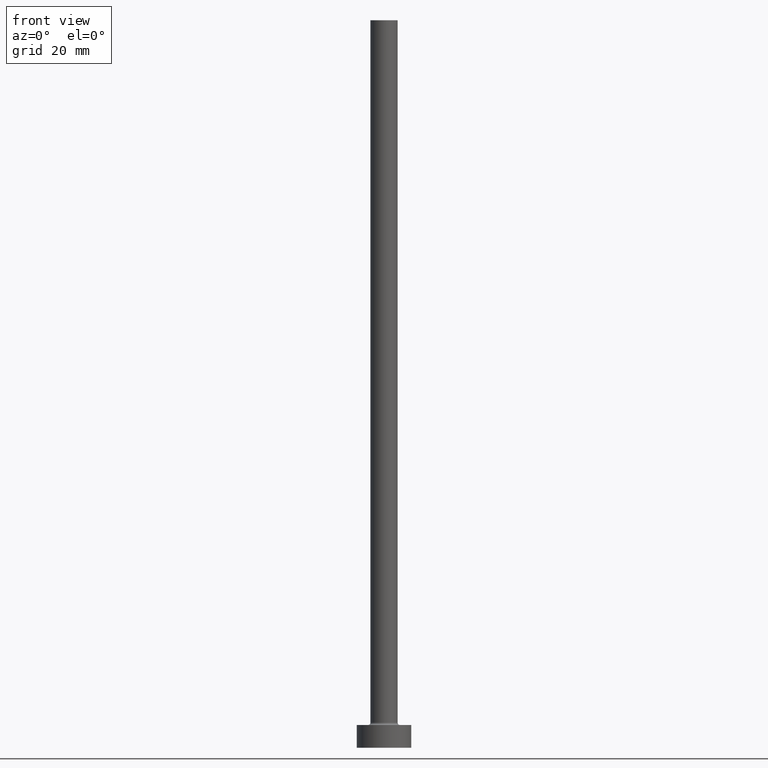
[diagram: clean part render]
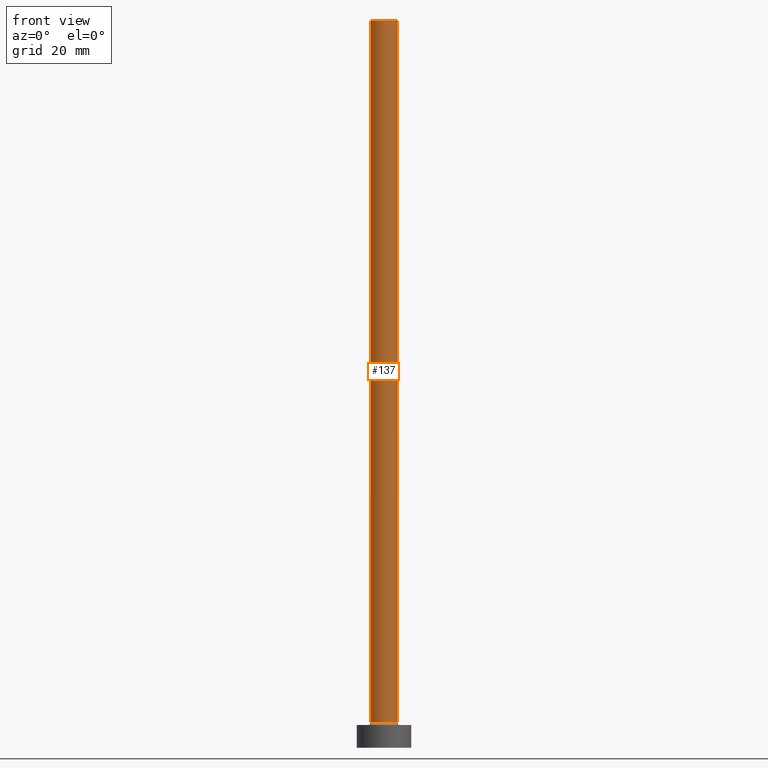
[diagram: same view with one face highlighted and labeled with its STEP entity id]
A machine part, front view. The second image highlights one B-rep face of the part: STEP entity #137.
In plain terms, the highlighted cylindrical surface (edge-blend (fillet) strip) has radius 3 mm, axis along (-0, -0, -1).
Its self-contained STEP definition (entity closure, byte-faithful):
#2 = VERTEX_POINT ( 'NONE', #216 ) ;
#24 = EDGE_CURVE ( 'NONE', #2, #69, #443, .T. ) ;
#54 = VERTEX_POINT ( 'NONE', #287 ) ;
#69 = VERTEX_POINT ( 'NONE', #397 ) ;
#70 = EDGE_CURVE ( 'NONE', #69, #54, #155, .T. ) ;
#94 = CYLINDRICAL_SURFACE ( 'NONE', #250, 3.000000000000000444 ) ;
#103 = EDGE_CURVE ( 'NONE', #2, #282, #431, .T. ) ;
#137 = ADVANCED_FACE ( 'NONE', ( #410 ), #94, .T. ) ;
#155 = LINE ( 'NONE', #256, #239 ) ;
#156 = ORIENTED_EDGE ( 'NONE', *, *, #230, .T. ) ;
#163 = CARTESIAN_POINT ( 'NONE',  ( -3.000000000000000444, 0.000000000000000000, 5.500000000000005329 ) ) ;
#178 = CIRCLE ( 'NONE', #374, 3.000000000000000444 ) ;
#183 = DIRECTION ( 'NONE',  ( -0.000000000000000000, -0.000000000000000000, -1.000000000000000000 ) ) ;
#186 = DIRECTION ( 'NONE',  ( 0.000000000000000000, 0.000000000000000000, 1.000000000000000000 ) ) ;
#189 = DIRECTION ( 'NONE',  ( -0.000000000000000000, -0.000000000000000000, -1.000000000000000000 ) ) ;
#195 = DIRECTION ( 'NONE',  ( 1.000000000000000000, 0.000000000000000000, 0.000000000000000000 ) ) ;
#201 = DIRECTION ( 'NONE',  ( -0.000000000000000000, -0.000000000000000000, -1.000000000000000000 ) ) ;
#207 = ORIENTED_EDGE ( 'NONE', *, *, #24, .F. ) ;
#216 = CARTESIAN_POINT ( 'NONE',  ( -3.000000000000000444, 0.000000000000000000, 160.0000000000000000 ) ) ;
#230 = EDGE_CURVE ( 'NONE', #282, #54, #178, .T. ) ;
#231 = DIRECTION ( 'NONE',  ( -1.000000000000000000, 0.000000000000000000, 0.000000000000000000 ) ) ;
#232 = VECTOR ( 'NONE', #189, 1000.000000000000000 ) ;
#239 = VECTOR ( 'NONE', #183, 1000.000000000000000 ) ;
#250 = AXIS2_PLACEMENT_3D ( 'NONE', #449, #201, #231 ) ;
#253 = ORIENTED_EDGE ( 'NONE', *, *, #70, .F. ) ;
#256 = CARTESIAN_POINT ( 'NONE',  ( 3.000000000000000444, 3.673940397442060361E-16, 160.0000000000000000 ) ) ;
#260 = CARTESIAN_POINT ( 'NONE',  ( -3.000000000000000444, 0.000000000000000000, 160.0000000000000000 ) ) ;
#282 = VERTEX_POINT ( 'NONE', #163 ) ;
#287 = CARTESIAN_POINT ( 'NONE',  ( 3.000000000000000444, 3.673940397442060361E-16, 5.500000000000005329 ) ) ;
#320 = ORIENTED_EDGE ( 'NONE', *, *, #103, .T. ) ;
#374 = AXIS2_PLACEMENT_3D ( 'NONE', #451, #441, #195 ) ;
#392 = EDGE_LOOP ( 'NONE', ( #253, #207, #320, #156 ) ) ;
#397 = CARTESIAN_POINT ( 'NONE',  ( 3.000000000000000444, 3.673940397442060361E-16, 160.0000000000000000 ) ) ;
#406 = CARTESIAN_POINT ( 'NONE',  ( 0.000000000000000000, 0.000000000000000000, 160.0000000000000000 ) ) ;
#410 = FACE_OUTER_BOUND ( 'NONE', #392, .T. ) ;
#431 = LINE ( 'NONE', #260, #232 ) ;
#437 = DIRECTION ( 'NONE',  ( 1.000000000000000000, 0.000000000000000000, 0.000000000000000000 ) ) ;
#441 = DIRECTION ( 'NONE',  ( 0.000000000000000000, 0.000000000000000000, 1.000000000000000000 ) ) ;
#443 = CIRCLE ( 'NONE', #452, 3.000000000000000444 ) ;
#449 = CARTESIAN_POINT ( 'NONE',  ( 0.000000000000000000, 0.000000000000000000, 160.0000000000000000 ) ) ;
#451 = CARTESIAN_POINT ( 'NONE',  ( 0.000000000000000000, 0.000000000000000000, 5.500000000000005329 ) ) ;
#452 = AXIS2_PLACEMENT_3D ( 'NONE', #406, #186, #437 ) ;